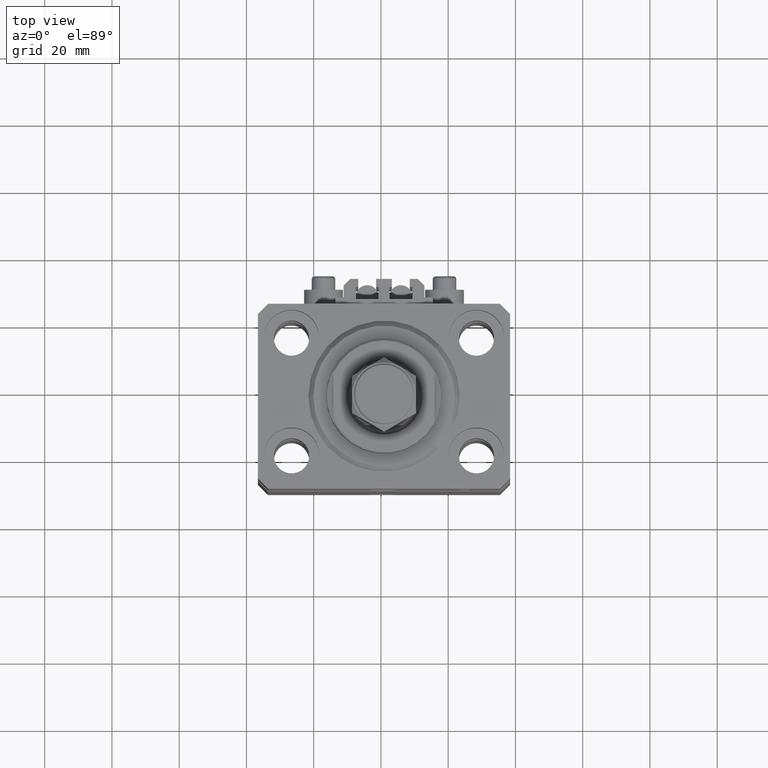
[diagram: clean part render]
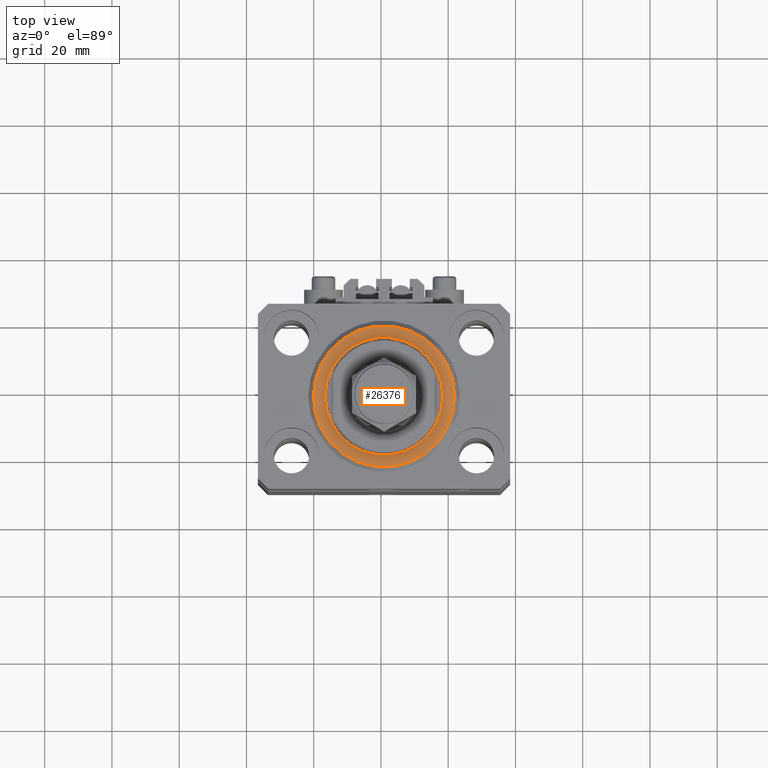
[diagram: same view with one face highlighted and labeled with its STEP entity id]
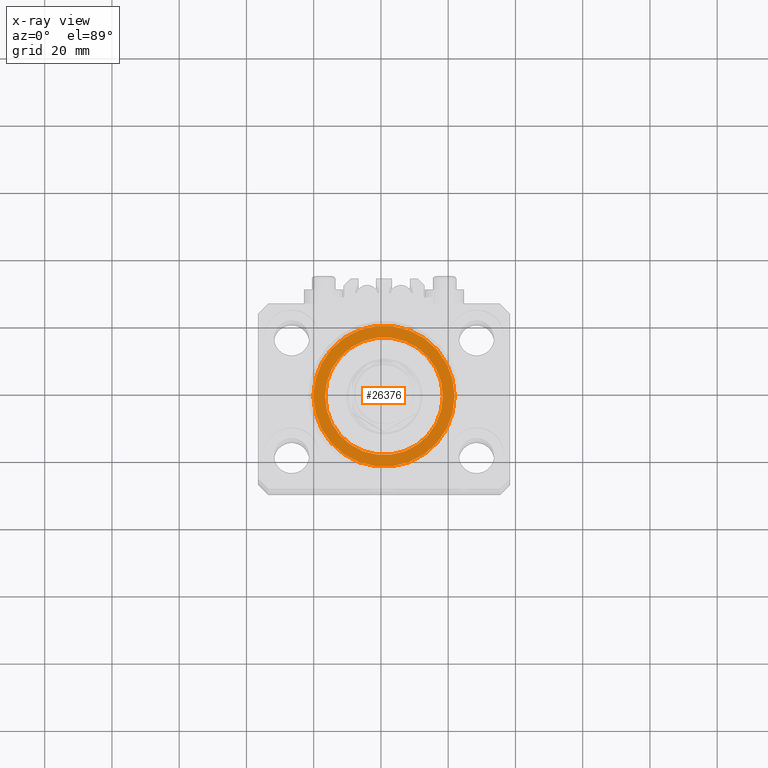
[diagram: x-ray of the same camera — body ghosted, the highlighted face saturated]
A machine part, top view. The second image highlights one B-rep face of the part: STEP entity #26376.
The next image is the same camera in x-ray: the body ghosted, the highlighted face saturated — about 0% of this face is hidden behind the body in this view.
In plain terms, the highlighted planar face has unit normal (0, 0, -1).
Its self-contained STEP definition (entity closure, byte-faithful):
#400 = CARTESIAN_POINT ( 'NONE',  ( 0.000000000000000000, 0.000000000000000000, 0.000000000000000000 ) ) ;
#465 = DIRECTION ( 'NONE',  ( 1.000000000000000000, 0.000000000000000000, 0.000000000000000000 ) ) ;
#508 = ORIENTED_EDGE ( 'NONE', *, *, #23135, .T. ) ;
#2375 = CARTESIAN_POINT ( 'NONE',  ( 17.50000000000000000, 0.000000000000000000, -2.168404344971008868E-16 ) ) ;
#2798 = FACE_OUTER_BOUND ( 'NONE', #39051, .T. ) ;
#3418 = VERTEX_POINT ( 'NONE', #2375 ) ;
#3674 = CIRCLE ( 'NONE', #24428, 20.99999999999995381 ) ;
#7773 = AXIS2_PLACEMENT_3D ( 'NONE', #19676, #41609, #465 ) ;
#9016 = VERTEX_POINT ( 'NONE', #17379 ) ;
#10049 = CARTESIAN_POINT ( 'NONE',  ( 0.000000000000000000, 0.000000000000000000, 0.000000000000000000 ) ) ;
#13248 = ORIENTED_EDGE ( 'NONE', *, *, #32010, .T. ) ;
#15508 = AXIS2_PLACEMENT_3D ( 'NONE', #37286, #40531, #29340 ) ;
#17165 = ORIENTED_EDGE ( 'NONE', *, *, #36440, .T. ) ;
#17379 = CARTESIAN_POINT ( 'NONE',  ( -17.50000000000000000, 2.143131898507868643E-15, -2.168404344971008868E-16 ) ) ;
#18014 = DIRECTION ( 'NONE',  ( 0.000000000000000000, 0.000000000000000000, 1.000000000000000000 ) ) ;
#19676 = CARTESIAN_POINT ( 'NONE',  ( 0.000000000000000000, 0.000000000000000000, 0.000000000000000000 ) ) ;
#22014 = DIRECTION ( 'NONE',  ( 1.000000000000000000, 0.000000000000000000, -0.000000000000000000 ) ) ;
#23135 = EDGE_CURVE ( 'NONE', #3418, #9016, #38440, .T. ) ;
#24361 = VERTEX_POINT ( 'NONE', #28527 ) ;
#24428 = AXIS2_PLACEMENT_3D ( 'NONE', #400, #46036, #42294 ) ;
#26376 = ADVANCED_FACE ( 'NONE', ( #36973, #2798 ), #36729, .F. ) ;
#27366 = AXIS2_PLACEMENT_3D ( 'NONE', #10049, #18014, #22014 ) ;
#28527 = CARTESIAN_POINT ( 'NONE',  ( -20.99999999999995381, 2.663606788145490261E-15, 0.000000000000000000 ) ) ;
#29072 = DIRECTION ( 'NONE',  ( 0.000000000000000000, 0.000000000000000000, 1.000000000000000000 ) ) ;
#29297 = CIRCLE ( 'NONE', #7773, 17.50000000000000000 ) ;
#29340 = DIRECTION ( 'NONE',  ( 1.000000000000000000, 0.000000000000000000, 0.000000000000000000 ) ) ;
#29797 = DIRECTION ( 'NONE',  ( 1.000000000000000000, 0.000000000000000000, 0.000000000000000000 ) ) ;
#32010 = EDGE_CURVE ( 'NONE', #24361, #46155, #41768, .T. ) ;
#35195 = ORIENTED_EDGE ( 'NONE', *, *, #43045, .T. ) ;
#36440 = EDGE_CURVE ( 'NONE', #46155, #24361, #3674, .T. ) ;
#36729 = PLANE ( 'NONE',  #27366 ) ;
#36973 = FACE_BOUND ( 'NONE', #39522, .T. ) ;
#37286 = CARTESIAN_POINT ( 'NONE',  ( 0.000000000000000000, 0.000000000000000000, 0.000000000000000000 ) ) ;
#38440 = CIRCLE ( 'NONE', #40034, 17.50000000000000000 ) ;
#39051 = EDGE_LOOP ( 'NONE', ( #17165, #13248 ) ) ;
#39522 = EDGE_LOOP ( 'NONE', ( #508, #35195 ) ) ;
#40034 = AXIS2_PLACEMENT_3D ( 'NONE', #48238, #29072, #29797 ) ;
#40531 = DIRECTION ( 'NONE',  ( -0.000000000000000000, -0.000000000000000000, -1.000000000000000000 ) ) ;
#41609 = DIRECTION ( 'NONE',  ( 0.000000000000000000, 0.000000000000000000, 1.000000000000000000 ) ) ;
#41768 = CIRCLE ( 'NONE', #15508, 20.99999999999995381 ) ;
#42294 = DIRECTION ( 'NONE',  ( 1.000000000000000000, 0.000000000000000000, 0.000000000000000000 ) ) ;
#43045 = EDGE_CURVE ( 'NONE', #9016, #3418, #29297, .T. ) ;
#46036 = DIRECTION ( 'NONE',  ( -0.000000000000000000, -0.000000000000000000, -1.000000000000000000 ) ) ;
#46155 = VERTEX_POINT ( 'NONE', #48613 ) ;
#48238 = CARTESIAN_POINT ( 'NONE',  ( 0.000000000000000000, 0.000000000000000000, 0.000000000000000000 ) ) ;
#48613 = CARTESIAN_POINT ( 'NONE',  ( 20.99999999999995381, 0.000000000000000000, 0.000000000000000000 ) ) ;